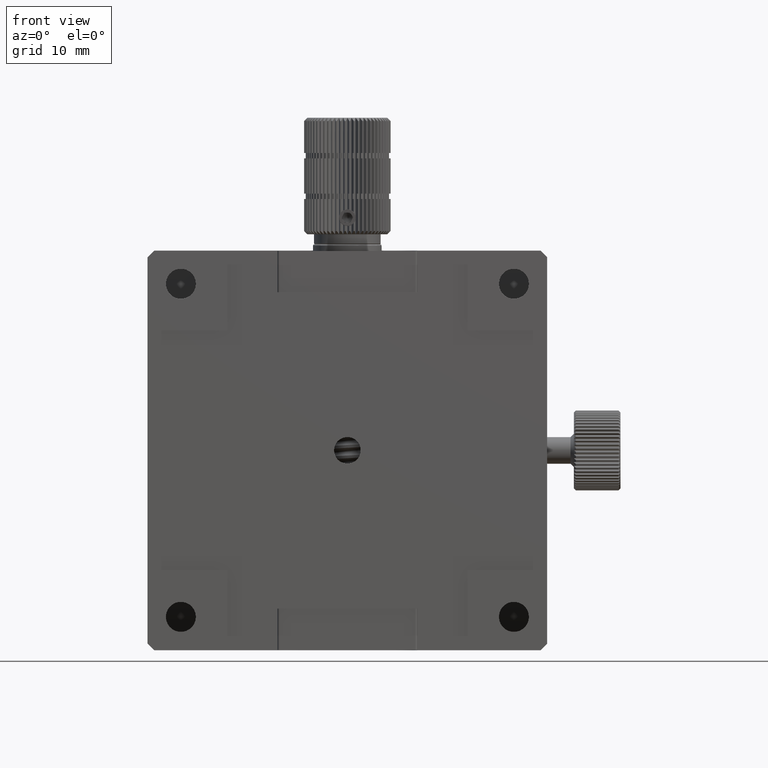
[diagram: clean part render]
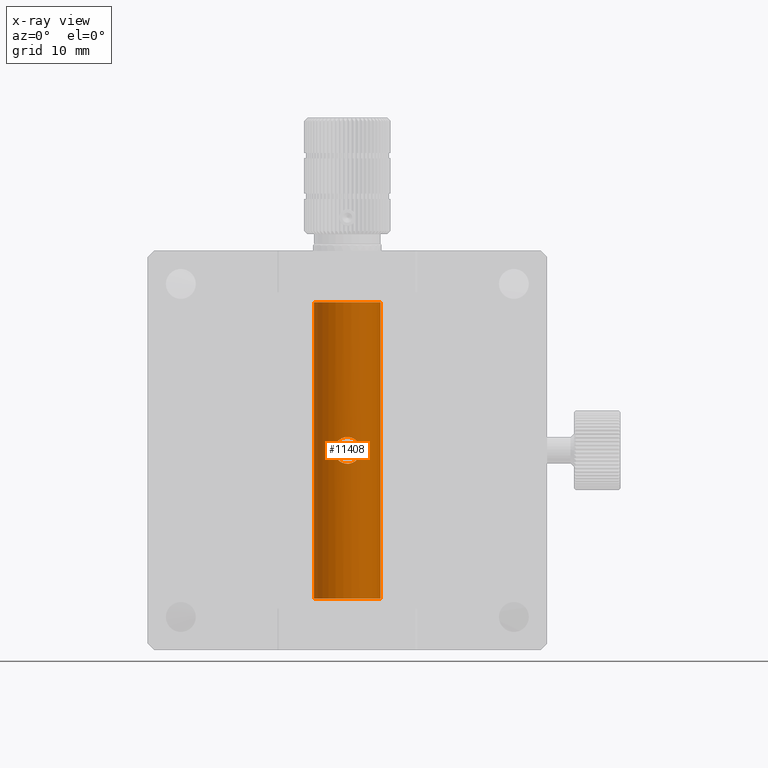
[diagram: x-ray — body ghosted, one internal face saturated and labeled with its STEP entity id]
A machine part, front view, then the same camera in x-ray: the body is ghosted and one INTERNAL B-rep face — a face not visible from any outside direction — is saturated and labeled: STEP entity #11408.
In plain terms, the highlighted cylindrical surface (bore or boss wall) has radius 5 mm, axis along (0, 0, 1).
Its self-contained STEP definition (entity closure, byte-faithful):
#1 = VERTEX_POINT ( 'NONE', #6863 ) ;
#3 = CARTESIAN_POINT ( 'NONE',  ( 45.80815170114993862, 47.97048659088299871, 39.72904667704484183 ) ) ;
#563 = CARTESIAN_POINT ( 'NONE',  ( 53.44894701803934822, 49.01679092803902194, 63.30438114487145640 ) ) ;
#986 = CARTESIAN_POINT ( 'NONE',  ( 50.05815170115005230, 45.33657315266980703, 72.47904667704483472 ) ) ;
#1455 = EDGE_CURVE ( 'NONE', #22074, #22074, #47339, .T. ) ;
#1667 = DIRECTION ( 'NONE',  ( -3.491481338843133750E-15, -0.000000000000000000, -1.000000000000000000 ) ) ;
#1813 = CARTESIAN_POINT ( 'NONE',  ( 48.31320813620094157, 40.64969683733081496, 51.24034731236671547 ) ) ;
#1982 = CARTESIAN_POINT ( 'NONE',  ( 48.88061473882262931, 50.20469504053959042, 35.63488059359335836 ) ) ;
#2322 = CARTESIAN_POINT ( 'NONE',  ( 46.82974004132789503, 49.16157289168655353, 36.95258824039385814 ) ) ;
#2677 = CARTESIAN_POINT ( 'NONE',  ( 46.04275861378286550, 48.32068928932734053, 38.31100439270876024 ) ) ;
#2845 = CARTESIAN_POINT ( 'NONE',  ( 48.16281346254180562, 40.70941394087414977, 50.88064641325911452 ) ) ;
#3177 = CARTESIAN_POINT ( 'NONE',  ( 48.12262577649098461, 40.72631043341206691, 49.70846110977213073 ) ) ;
#3949 = DIRECTION ( 'NONE',  ( 3.491481338843133750E-15, 0.000000000000000000, 1.000000000000000000 ) ) ;
#4214 = CARTESIAN_POINT ( 'NONE',  ( 52.04514703097499506, 40.74825827334481687, 50.49197204582763021 ) ) ;
#4709 = CARTESIAN_POINT ( 'NONE',  ( 48.09120923261460945, 49.94166652173441889, 64.50706671103127121 ) ) ;
#5366 = CARTESIAN_POINT ( 'NONE',  ( 45.95935415278325564, 48.20208400598792053, 61.88816772633074947 ) ) ;
#5712 = CARTESIAN_POINT ( 'NONE',  ( 45.80815170115001678, 47.97048659088299871, 60.72904667704483472 ) ) ;
#6057 = CARTESIAN_POINT ( 'NONE',  ( 52.71531983145778355, 49.57966735968735605, 64.05697189424057569 ) ) ;
#6105 = CARTESIAN_POINT ( 'NONE',  ( 55.05815170114990309, 45.33657315266980703, 27.97904667704480630 ) ) ;
#6863 = CARTESIAN_POINT ( 'NONE',  ( 45.80815170115001678, 47.97048659088299871, 60.72904667704483472 ) ) ;
#6967 = CARTESIAN_POINT ( 'NONE',  ( 48.83332658974511276, 40.48765048952147083, 48.64263115890010880 ) ) ;
#7109 = VERTEX_POINT ( 'NONE', #6105 ) ;
#7312 = CARTESIAN_POINT ( 'NONE',  ( 51.95342798353183866, 40.70938820739922193, 49.57725917420372497 ) ) ;
#7488 = CARTESIAN_POINT ( 'NONE',  ( 53.28174543550734654, 49.16562979878200679, 36.94702222756942689 ) ) ;
#7641 = CARTESIAN_POINT ( 'NONE',  ( 52.05794405348380138, 40.75390683297235483, 50.09393968021615962 ) ) ;
#7650 = B_SPLINE_CURVE_WITH_KNOTS ( 'NONE', 3,
 ( #37030, #32189, #10873, #26679, #57402, #16718, #21537, #563, #47734, #62888, #6057, #15696, #58074, #25671, #42558, #48077, #16046, #32530, #15347, #36687, #46733, #63566, #26008, #4709, #37355, #31525, #10198, #67718, #36342, #57741, #20528, #52914, #5366, #27022, #58397, #5712 ),
 .UNSPECIFIED., .F., .F.,
 ( 4, 2, 2, 2, 2, 2, 2, 2, 2, 2, 2, 2, 2, 2, 2, 2, 2, 4 ),
 ( -0.007122046129262360296, -0.006231786258515615608, -0.005341526387768870919, -0.004451266517022143578, -0.003561006646275415802, -0.002670746775528688895, -0.001780486904781961553, -0.0008902270340352350791, 3.283671149226230490E-08, 0.0008902927074582204711, 0.001335422642831579805, 0.001780552578204939139, 0.002670812448951624847, 0.003561072319698308820, 0.004451332190444992794, 0.005341592061191676767, 0.006231851931938346863, 0.007122111802685015224 ),
 .UNSPECIFIED. ) ;
#7823 = CARTESIAN_POINT ( 'NONE',  ( 52.71425780611127010, 49.58038572986447434, 36.40019939674787963 ) ) ;
#8001 = CARTESIAN_POINT ( 'NONE',  ( 51.06339353176797147, 40.43740905839857902, 48.49513288924747201 ) ) ;
#8334 = CARTESIAN_POINT ( 'NONE',  ( 49.79349600576139778, 40.34191283689385443, 52.21580165833988474 ) ) ;
#8516 = CARTESIAN_POINT ( 'NONE',  ( 47.19582833390324339, 49.44271121538356084, 36.57651305517199347 ) ) ;
#9704 = CARTESIAN_POINT ( 'NONE',  ( 51.85407830961550246, 40.66992309189460997, 51.11902795569042723 ) ) ;
#10030 = CARTESIAN_POINT ( 'NONE',  ( 50.32530100562546949, 40.33657315266979282, 52.22904667704481341 ) ) ;
#10198 = CARTESIAN_POINT ( 'NONE',  ( 47.20088047724797775, 49.44622429557545473, 63.88613675411397708 ) ) ;
#10558 = VECTOR ( 'NONE', #55232, 1000.000000000000000 ) ;
#10779 = ORIENTED_EDGE ( 'NONE', *, *, #37038, .F. ) ;
#10873 = CARTESIAN_POINT ( 'NONE',  ( 54.27616307064461409, 48.02354778450259687, 61.32389409503558397 ) ) ;
#11408 = ADVANCED_FACE ( 'NONE', ( #13128, #39633, #44472, #59281 ), #17276, .F. ) ;
#12118 = CARTESIAN_POINT ( 'NONE',  ( 48.05835927727253676, 40.75390686419648745, 50.36411376184408084 ) ) ;
#12307 = CARTESIAN_POINT ( 'NONE',  ( 46.25253314738780119, 48.58397183259754826, 37.81815866632791057 ) ) ;
#12463 = CARTESIAN_POINT ( 'NONE',  ( 50.19079345865549868, 40.33654742554895734, 48.22898235923646837 ) ) ;
#12655 = CARTESIAN_POINT ( 'NONE',  ( 53.86133921718833761, 48.58681981345559109, 37.81340659692835260 ) ) ;
#12818 = CARTESIAN_POINT ( 'NONE',  ( 48.05794895941095035, 40.75408594133497786, 50.10019851860423756 ) ) ;
#12988 = CARTESIAN_POINT ( 'NONE',  ( 45.95897098529363234, 48.20156356173762902, 38.57052139780928712 ) ) ;
#13128 = FACE_BOUND ( 'NONE', #61179, .T. ) ;
#13154 = CARTESIAN_POINT ( 'NONE',  ( 49.78996935341982066, 40.33662488701914128, 48.22917601293083578 ) ) ;
#13515 = CARTESIAN_POINT ( 'NONE',  ( 50.70728320584363757, 40.37738078157889987, 48.33279358893694422 ) ) ;
#13919 = CIRCLE ( 'NONE', #50224, 5.000000000000004441 ) ;
#14193 = CARTESIAN_POINT ( 'NONE',  ( 51.95545602932897111, 40.71021265450273319, 50.87530927507091150 ) ) ;
#14867 = CARTESIAN_POINT ( 'NONE',  ( 51.79247841442480649, 40.64637638086120575, 51.23348480606350108 ) ) ;
#15347 = CARTESIAN_POINT ( 'NONE',  ( 49.46225541793631209, 50.30949399635581898, 64.94728162291839624 ) ) ;
#15696 = CARTESIAN_POINT ( 'NONE',  ( 52.27209333954326098, 49.82687975068040487, 64.36691571616088936 ) ) ;
#16046 = CARTESIAN_POINT ( 'NONE',  ( 50.35991248911476248, 50.33657516821352829, 64.97904904827272787 ) ) ;
#16427 = EDGE_CURVE ( 'NONE', #49905, #49905, #18957, .T. ) ;
#16718 = CARTESIAN_POINT ( 'NONE',  ( 53.86377025491217552, 48.58397183259752694, 62.63993468776174467 ) ) ;
#17276 = CYLINDRICAL_SURFACE ( 'NONE', #53625, 5.000000000000004441 ) ;
#17303 = ORIENTED_EDGE ( 'NONE', *, *, #53407, .F. ) ;
#17635 = CARTESIAN_POINT ( 'NONE',  ( 49.04907044514021663, 40.43820581594513186, 48.49738107176531798 ) ) ;
#18163 = CARTESIAN_POINT ( 'NONE',  ( 50.65404798436364331, 50.30949399635581898, 35.51081173117124479 ) ) ;
#18323 = CARTESIAN_POINT ( 'NONE',  ( 48.46767210389892000, 40.59566573710350923, 49.00955926043737065 ) ) ;
#18957 = CIRCLE ( 'NONE', #64034, 5.000000000000004441 ) ;
#19038 = LINE ( 'NONE', #60043, #10558 ) ;
#19072 = CARTESIAN_POINT ( 'NONE',  ( 50.05815170114989598, 45.33657315266980703, 27.97904667704482407 ) ) ;
#19352 = CARTESIAN_POINT ( 'NONE',  ( 50.58985306992597941, 40.35898152665953376, 52.17458318249426696 ) ) ;
#19466 = ORIENTED_EDGE ( 'NONE', *, *, #66789, .F. ) ;
#20028 = CARTESIAN_POINT ( 'NONE',  ( 51.64839527188922119, 40.59558588287198688, 51.44884604133701345 ) ) ;
#20528 = CARTESIAN_POINT ( 'NONE',  ( 46.25496418511163910, 48.58681981345560530, 62.64468675716132395 ) ) ;
#20658 = EDGE_LOOP ( 'NONE', ( #22474, #59768, #17303, #19466 ) ) ;
#21537 = CARTESIAN_POINT ( 'NONE',  ( 53.73708407697021983, 48.72876305438877154, 62.87271108090018856 ) ) ;
#22074 = VERTEX_POINT ( 'NONE', #63451 ) ;
#22315 = DIRECTION ( 'NONE',  ( 1.000000000000000000, 0.000000000000000000, -2.775557561562888984E-15 ) ) ;
#22474 = ORIENTED_EDGE ( 'NONE', *, *, #59435, .F. ) ;
#22635 = CARTESIAN_POINT ( 'NONE',  ( 51.50357723363482165, 50.12522947351926206, 35.72975631586710676 ) ) ;
#22794 = CARTESIAN_POINT ( 'NONE',  ( 48.07149444670567107, 40.74810989235814418, 50.49474259594303049 ) ) ;
#22958 = CARTESIAN_POINT ( 'NONE',  ( 54.27500236548972623, 48.02533946226953532, 39.12748751615335863 ) ) ;
#23090 = DIRECTION ( 'NONE',  ( 3.491481338843133750E-15, 0.000000000000000000, 1.000000000000000000 ) ) ;
#23306 = CARTESIAN_POINT ( 'NONE',  ( 51.08458345199025530, 50.23225455420580943, 35.60224858765383260 ) ) ;
#24142 = CARTESIAN_POINT ( 'NONE',  ( 48.73485791466374195, 40.51392573208411818, 51.73421195832069941 ) ) ;
#25538 = CARTESIAN_POINT ( 'NONE',  ( 45.80815170114986756, 47.97048659088299161, 20.22904667704483117 ) ) ;
#25671 = CARTESIAN_POINT ( 'NONE',  ( 51.51006404611197098, 50.12920418882912088, 64.73354134824704431 ) ) ;
#26008 = CARTESIAN_POINT ( 'NONE',  ( 48.47920119011408246, 50.08271392036539993, 64.67738364298787701 ) ) ;
#26679 = CARTESIAN_POINT ( 'NONE',  ( 54.15733241700630884, 48.20156356173760770, 61.88757195628036811 ) ) ;
#27022 = CARTESIAN_POINT ( 'NONE',  ( 45.84130103681022916, 48.02533946226953532, 61.33060583793628240 ) ) ;
#28291 = CARTESIAN_POINT ( 'NONE',  ( 51.99266197230843289, 40.72588197738146931, 49.70456400530998309 ) ) ;
#28459 = CARTESIAN_POINT ( 'NONE',  ( 45.84014033165531998, 48.02354778450261108, 39.13419925905406416 ) ) ;
#28597 = DIRECTION ( 'NONE',  ( 1.000000000000000000, 0.000000000000000000, -3.469446951953611033E-15 ) ) ;
#28627 = CARTESIAN_POINT ( 'NONE',  ( 50.94899285721074733, 40.41505278610210183, 48.43362207010283527 ) ) ;
#28814 = CARTESIAN_POINT ( 'NONE',  ( 53.73678667795819308, 48.72912432770261404, 37.58478116610646680 ) ) ;
#29317 = CARTESIAN_POINT ( 'NONE',  ( 48.83605591627749476, 40.48695556921722982, 51.81758078648920218 ) ) ;
#29493 = CARTESIAN_POINT ( 'NONE',  ( 54.07133870086921945, 48.32365680455904311, 38.30488295612531147 ) ) ;
#31525 = CARTESIAN_POINT ( 'NONE',  ( 47.40204559618870661, 49.58038572986450276, 64.05789395734176139 ) ) ;
#32189 = CARTESIAN_POINT ( 'NONE',  ( 54.30815170115003099, 47.97048659088298450, 61.03184980313717034 ) ) ;
#32530 = CARTESIAN_POINT ( 'NONE',  ( 49.75632412411683703, 50.33657113690305351, 64.97904430555452393 ) ) ;
#33105 = CARTESIAN_POINT ( 'NONE',  ( 48.26210496750586287, 40.66996967711653355, 49.33931326510327153 ) ) ;
#33287 = CARTESIAN_POINT ( 'NONE',  ( 49.75639091318520002, 50.33657516821352829, 35.47904430581692736 ) ) ;
#33421 = CARTESIAN_POINT ( 'NONE',  ( 50.05815170114986756, 45.33657315266980703, 20.22904667704481696 ) ) ;
#33801 = CARTESIAN_POINT ( 'NONE',  ( 50.57949883403170332, 40.36215020188645042, 48.29373136322777071 ) ) ;
#33969 = CARTESIAN_POINT ( 'NONE',  ( 50.35997927818311837, 50.33657113690306772, 35.47904904853510288 ) ) ;
#34130 = CARTESIAN_POINT ( 'NONE',  ( 50.32194368849638266, 40.34186592264561710, 48.24217426436438672 ) ) ;
#34200 = VERTEX_POINT ( 'NONE', #65302 ) ;
#34320 = CARTESIAN_POINT ( 'NONE',  ( 52.91542292505202028, 49.44622429557542631, 36.57195659997569237 ) ) ;
#34490 = CARTESIAN_POINT ( 'NONE',  ( 51.38106640213345599, 40.51382075632583479, 48.72354481261719883 ) ) ;
#34664 = CARTESIAN_POINT ( 'NONE',  ( 46.66735638426060007, 49.01679092803903615, 37.15371220921814910 ) ) ;
#35047 = CARTESIAN_POINT ( 'NONE',  ( 55.05815170115005230, 45.33657315266980703, 72.47904667704482051 ) ) ;
#35163 = CARTESIAN_POINT ( 'NONE',  ( 51.38205520123931080, 40.51408761150551641, 51.73371418020392554 ) ) ;
#36342 = CARTESIAN_POINT ( 'NONE',  ( 46.66862964491367194, 49.01799937060500412, 63.30613226046731512 ) ) ;
#36687 = CARTESIAN_POINT ( 'NONE',  ( 49.03171995030973562, 50.23225455420583074, 64.85584476643582263 ) ) ;
#37030 = CARTESIAN_POINT ( 'NONE',  ( 54.30815170115000967, 47.97048659088299161, 60.72904667704482051 ) ) ;
#37038 = EDGE_CURVE ( 'NONE', #7109, #7109, #13919, .T. ) ;
#37355 = CARTESIAN_POINT ( 'NONE',  ( 47.84693919280255159, 49.82827484290882580, 64.36864323425838563 ) ) ;
#38458 = CARTESIAN_POINT ( 'NONE',  ( 46.37921932532974978, 48.72876305438879996, 37.58538227318948088 ) ) ;
#38818 = CARTESIAN_POINT ( 'NONE',  ( 48.08363390551645722, 49.93859892193025019, 35.95475117935704645 ) ) ;
#38822 = EDGE_LOOP ( 'NONE', ( #10779 ) ) ;
#38981 = CARTESIAN_POINT ( 'NONE',  ( 48.16078436941770491, 40.71023885044360924, 49.58297653980429942 ) ) ;
#39165 = CARTESIAN_POINT ( 'NONE',  ( 52.26936420949740381, 49.82827484290884001, 36.08945011983125539 ) ) ;
#39321 = CARTESIAN_POINT ( 'NONE',  ( 48.73387056300106224, 40.51419223399138758, 48.72471466976870147 ) ) ;
#39633 = FACE_OUTER_BOUND ( 'NONE', #62742, .T. ) ;
#39657 = CARTESIAN_POINT ( 'NONE',  ( 48.55110833079714183, 40.56814589228650902, 48.90785191439698565 ) ) ;
#39842 = CARTESIAN_POINT ( 'NONE',  ( 51.22728727863101028, 50.20007048798711935, 35.64044051302801108 ) ) ;
#40362 = CARTESIAN_POINT ( 'NONE',  ( 50.05815170114996704, 40.33657315266980703, 52.22904667704481341 ) ) ;
#41043 = CARTESIAN_POINT ( 'NONE',  ( 51.28254736288248239, 40.48754072805006388, 51.81579730434361863 ) ) ;
#42498 = CARTESIAN_POINT ( 'NONE',  ( 54.30815170115000967, 47.97048659088299161, 60.72904667704482051 ) ) ;
#42558 = CARTESIAN_POINT ( 'NONE',  ( 51.23568866347733319, 50.20469504053961884, 64.82321276049630399 ) ) ;
#43806 = CARTESIAN_POINT ( 'NONE',  ( 48.07114841250815118, 40.74826182097802274, 49.96620096411378142 ) ) ;
#43976 = CARTESIAN_POINT ( 'NONE',  ( 52.02509416968537437, 49.94166652173441179, 35.95102664305835560 ) ) ;
#44140 = VECTOR ( 'NONE', #52449, 1000.000000000000000 ) ;
#44143 = CARTESIAN_POINT ( 'NONE',  ( 48.12360211393777121, 40.72589857811095015, 50.75337411536218468 ) ) ;
#44300 = B_SPLINE_CURVE_WITH_KNOTS ( 'NONE', 3,
 ( #50222, #49177, #28459, #12988, #2677, #12307, #38458, #34664, #2322, #8516, #44329, #60177, #38818, #55718, #1982, #55016, #33287, #33969, #18163, #23306, #39842, #22635, #65342, #43976, #39165, #7823, #34320, #7488, #49508, #28814, #12655, #29493, #59482, #22958, #59837, #54352 ),
 .UNSPECIFIED., .F., .F.,
 ( 4, 2, 2, 2, 2, 2, 2, 2, 2, 2, 2, 2, 2, 2, 2, 2, 2, 4 ),
 ( 6.938893903907228378E-18, 0.0008928408399373614131, 0.001785681679874715887, 0.002678522519812070145, 0.003571363359749424836, 0.004464204199686779527, 0.005357045039624133351, 0.006249885879561488042, 0.007142726719498842733, 0.008035567559436197424, 0.008481987979404874770, 0.008928408399373552115, 0.009821249239310924153, 0.01071409007924829446, 0.01160693091918566650, 0.01249977175912303853, 0.01339261259906041057, 0.01428545343899778261 ),
 .UNSPECIFIED. ) ;
#44329 = CARTESIAN_POINT ( 'NONE',  ( 47.40098357084220027, 49.57966735968735605, 36.40112145984909375 ) ) ;
#44472 = FACE_BOUND ( 'NONE', #20658, .T. ) ;
#44497 = CARTESIAN_POINT ( 'NONE',  ( 49.16671503181426317, 40.41516206207479200, 52.02417235900294656 ) ) ;
#44834 = CARTESIAN_POINT ( 'NONE',  ( 49.05236932264798355, 40.43752114026677447, 51.96264424608042276 ) ) ;
#45887 = CARTESIAN_POINT ( 'NONE',  ( 50.95021369389714039, 40.41529216228554588, 52.02381130255830755 ) ) ;
#46733 = CARTESIAN_POINT ( 'NONE',  ( 48.88901612366895222, 50.20007048798712646, 64.81765284106164415 ) ) ;
#47339 = B_SPLINE_CURVE_WITH_KNOTS ( 'NONE', 3,
 ( #48999, #54173, #8334, #50030, #64486, #44497, #44834, #29317, #24142, #65157, #1813, #2845, #44143, #22794, #12118, #12818, #43806, #3177, #38981, #33105, #64814, #18323, #39657, #39321, #6967, #17635, #60678, #59646, #13154, #12463, #34130, #33801, #13515, #28627, #8001, #60003, #34490, #54842, #54509, #7312, #28291, #49332, #7641, #56910, #4214, #67554, #14193, #9704, #14867, #20028, #66540, #35163, #41043, #52077, #45887, #19352, #10030, #40362 ),
 .UNSPECIFIED., .T., .F.,
 ( 4, 2, 2, 2, 2, 2, 2, 2, 2, 2, 2, 2, 2, 2, 2, 2, 2, 2, 2, 2, 2, 2, 2, 2, 2, 2, 2, 2, 4 ),
 ( 0.000000000000000000, 0.0003947506670800702460, 0.0007895013341601404919, 0.001184252001240210846, 0.001579002668320280984, 0.002368504002480407381, 0.002763254669560480121, 0.003158005336640552427, 0.003552756003720625166, 0.003947506670800697039, 0.004342257337880769778, 0.004737008004960842518, 0.005131758672040914390, 0.005526509339120987130, 0.006316010673281134344, 0.006710761340361208818, 0.007105512007441283293, 0.007500262674521356900, 0.007895013341601432241, 0.008684514675761591598, 0.009079265342841666073, 0.009474016009921738812, 0.009868766677001813287, 0.01026351734408188776, 0.01065826801116196397, 0.01105301867824203844, 0.01144776934532211292, 0.01184252001240218566, 0.01263202134656234675 ),
 .UNSPECIFIED. ) ;
#47734 = CARTESIAN_POINT ( 'NONE',  ( 53.28656336097206747, 49.16157289168654643, 63.50550511369580420 ) ) ;
#48077 = CARTESIAN_POINT ( 'NONE',  ( 50.66122347888232014, 50.30864600447988977, 64.94628435678666278 ) ) ;
#48999 = CARTESIAN_POINT ( 'NONE',  ( 50.05815170114996704, 40.33657315266980703, 52.22904667704481341 ) ) ;
#49177 = CARTESIAN_POINT ( 'NONE',  ( 45.80815170114993862, 47.97048659088300582, 39.42624355095249200 ) ) ;
#49332 = CARTESIAN_POINT ( 'NONE',  ( 52.04480109533400167, 40.74810638394546203, 49.96327187245268675 ) ) ;
#49508 = CARTESIAN_POINT ( 'NONE',  ( 53.44767375738631898, 49.01799937060498991, 37.15196109362237564 ) ) ;
#49905 = VERTEX_POINT ( 'NONE', #35047 ) ;
#50030 = CARTESIAN_POINT ( 'NONE',  ( 49.53603849669394066, 40.36223177829455722, 52.16415282259213626 ) ) ;
#50222 = CARTESIAN_POINT ( 'NONE',  ( 45.80815170114993862, 47.97048659088299871, 39.72904667704484183 ) ) ;
#50224 = AXIS2_PLACEMENT_3D ( 'NONE', #19072, #3949, #50456 ) ;
#50456 = DIRECTION ( 'NONE',  ( 1.000000000000000000, 0.000000000000000000, -3.469446951953611033E-15 ) ) ;
#52077 = CARTESIAN_POINT ( 'NONE',  ( 51.06668721754997620, 40.43809213263484281, 51.96103351356016731 ) ) ;
#52449 = DIRECTION ( 'NONE',  ( -3.491481338843133750E-15, -0.000000000000000000, -1.000000000000000000 ) ) ;
#52914 = CARTESIAN_POINT ( 'NONE',  ( 46.04496470143077147, 48.32365680455902890, 62.15321039796433666 ) ) ;
#53407 = EDGE_CURVE ( 'NONE', #55632, #34200, #44300, .T. ) ;
#53460 = LINE ( 'NONE', #25538, #44140 ) ;
#53625 = AXIS2_PLACEMENT_3D ( 'NONE', #33421, #23090, #28597 ) ;
#54173 = CARTESIAN_POINT ( 'NONE',  ( 49.92457704891221226, 40.33657315266980703, 52.22904667704481341 ) ) ;
#54352 = CARTESIAN_POINT ( 'NONE',  ( 54.30815170114994572, 47.97048659088299871, 39.72904667704480630 ) ) ;
#54509 = CARTESIAN_POINT ( 'NONE',  ( 51.80294702323017475, 40.64964024284069666, 49.21747076505211993 ) ) ;
#54842 = CARTESIAN_POINT ( 'NONE',  ( 51.65471750986657895, 40.59451099064406066, 48.99716425654746388 ) ) ;
#55016 = CARTESIAN_POINT ( 'NONE',  ( 49.45507992341764947, 50.30864600447989687, 35.51180899730300666 ) ) ;
#55232 = DIRECTION ( 'NONE',  ( 3.491481338843133750E-15, 0.000000000000000000, 1.000000000000000000 ) ) ;
#55632 = VERTEX_POINT ( 'NONE', #3 ) ;
#55718 = CARTESIAN_POINT ( 'NONE',  ( 48.60623935618803415, 50.12920418882912799, 35.72455200584264645 ) ) ;
#56910 = CARTESIAN_POINT ( 'NONE',  ( 52.05835451398536406, 40.75408597236392438, 50.35793445990413630 ) ) ;
#57402 = CARTESIAN_POINT ( 'NONE',  ( 54.07354478851708990, 48.32068928932730500, 62.14708896138089500 ) ) ;
#57741 = CARTESIAN_POINT ( 'NONE',  ( 46.37951672434179784, 48.72912432770261404, 62.87331218798320265 ) ) ;
#58074 = CARTESIAN_POINT ( 'NONE',  ( 52.03266949678350528, 49.93859892193023597, 64.50334217473263720 ) ) ;
#58197 = VERTEX_POINT ( 'NONE', #42498 ) ;
#58397 = CARTESIAN_POINT ( 'NONE',  ( 45.80815170115001678, 47.97048659088300582, 61.03153218247279455 ) ) ;
#59281 = FACE_OUTER_BOUND ( 'NONE', #38822, .T. ) ;
#59435 = EDGE_CURVE ( 'NONE', #58197, #1, #7650, .T. ) ;
#59482 = CARTESIAN_POINT ( 'NONE',  ( 54.15694924951672817, 48.20208400598790632, 38.56992562775888445 ) ) ;
#59646 = CARTESIAN_POINT ( 'NONE',  ( 49.52569134440287257, 40.35906774047462875, 48.28372823925518276 ) ) ;
#59768 = ORIENTED_EDGE ( 'NONE', *, *, #67982, .F. ) ;
#59837 = CARTESIAN_POINT ( 'NONE',  ( 54.30815170114995993, 47.97048659088301292, 39.42656117161685358 ) ) ;
#60003 = CARTESIAN_POINT ( 'NONE',  ( 51.27980982963024559, 40.48684415222670907, 48.64017299463452559 ) ) ;
#60043 = CARTESIAN_POINT ( 'NONE',  ( 54.30815170114986756, 47.97048659088300582, 20.22904667704480275 ) ) ;
#60177 = CARTESIAN_POINT ( 'NONE',  ( 47.84421006275672994, 49.82687975068043329, 36.09117763792878009 ) ) ;
#60678 = CARTESIAN_POINT ( 'NONE',  ( 49.16549232039892559, 40.41540177077887819, 48.43458193959938285 ) ) ;
#61179 = EDGE_LOOP ( 'NONE', ( #65036 ) ) ;
#62156 = ORIENTED_EDGE ( 'NONE', *, *, #16427, .F. ) ;
#62742 = EDGE_LOOP ( 'NONE', ( #62156 ) ) ;
#62888 = CARTESIAN_POINT ( 'NONE',  ( 52.92047506839675464, 49.44271121538354663, 63.88158029891764755 ) ) ;
#63451 = CARTESIAN_POINT ( 'NONE',  ( 50.05815170114995993, 40.33657315266979992, 52.22904667704481341 ) ) ;
#63566 = CARTESIAN_POINT ( 'NONE',  ( 48.61272616866514795, 50.12522947351926206, 64.72833703822256268 ) ) ;
#64034 = AXIS2_PLACEMENT_3D ( 'NONE', #986, #1667, #22315 ) ;
#64486 = CARTESIAN_POINT ( 'NONE',  ( 49.40830473938861189, 40.37747591785402790, 52.12505154933590745 ) ) ;
#64814 = CARTESIAN_POINT ( 'NONE',  ( 48.32367052870809232, 40.64643418514567230, 49.22488037060929855 ) ) ;
#65036 = ORIENTED_EDGE ( 'NONE', *, *, #1455, .T. ) ;
#65157 = CARTESIAN_POINT ( 'NONE',  ( 48.46135451061022081, 40.59459286097484920, 51.46061259470003080 ) ) ;
#65302 = CARTESIAN_POINT ( 'NONE',  ( 54.30815170114994572, 47.97048659088299871, 39.72904667704480630 ) ) ;
#65342 = CARTESIAN_POINT ( 'NONE',  ( 51.63710221218590135, 50.08271392036537861, 35.78070971110178533 ) ) ;
#66540 = CARTESIAN_POINT ( 'NONE',  ( 51.56491187019679501, 40.56805545161624593, 51.55056798432141107 ) ) ;
#66789 = EDGE_CURVE ( 'NONE', #1, #55632, #53460, .T. ) ;
#67554 = CARTESIAN_POINT ( 'NONE',  ( 51.99363909140540585, 40.72629415517477725, 50.74978533746688925 ) ) ;
#67718 = CARTESIAN_POINT ( 'NONE',  ( 46.83455796679262306, 49.16562979878201389, 63.51107112652022835 ) ) ;
#67982 = EDGE_CURVE ( 'NONE', #34200, #58197, #19038, .T. ) ;